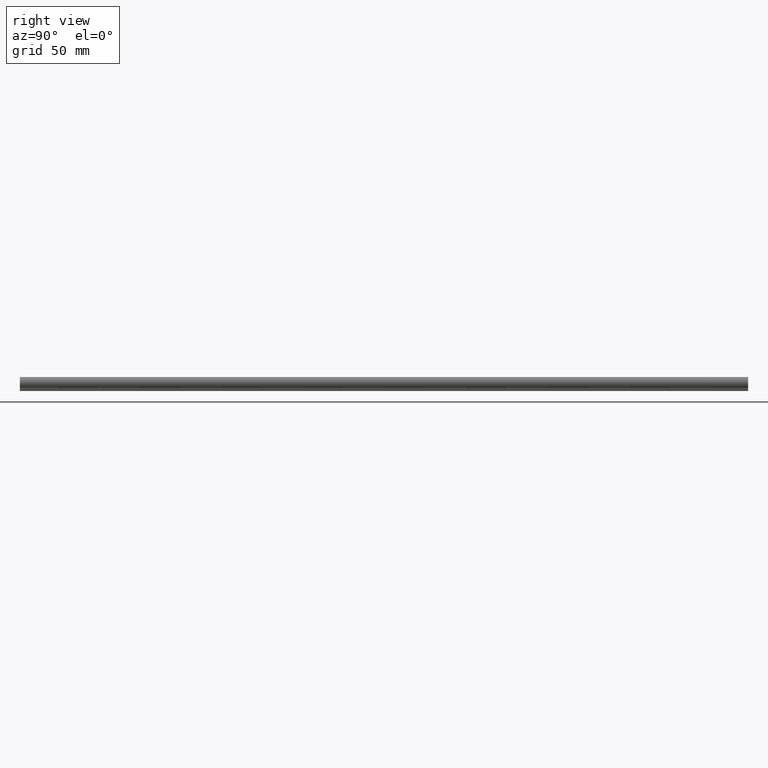
[diagram: clean part render]
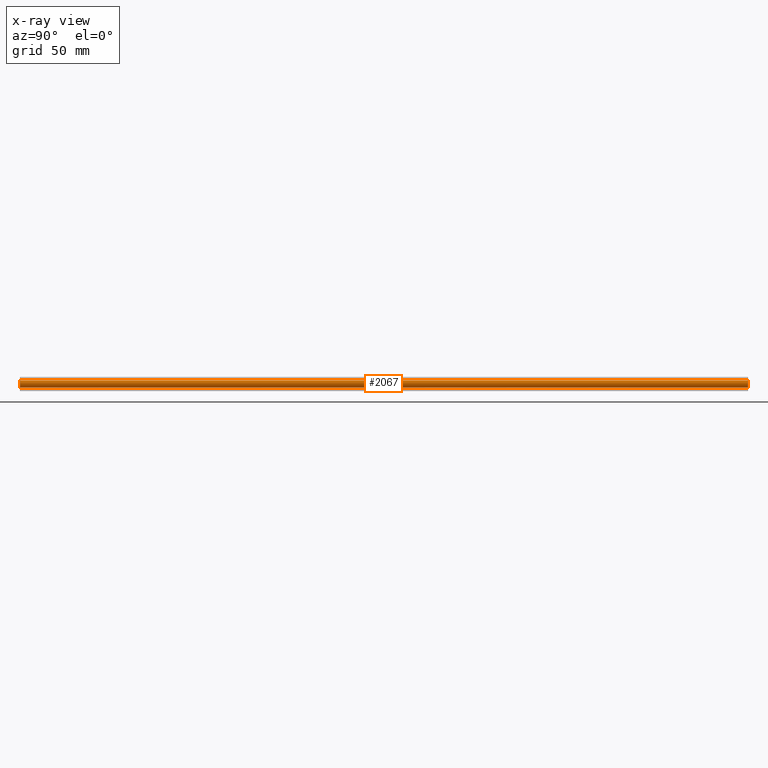
[diagram: x-ray — body ghosted, one internal face saturated and labeled with its STEP entity id]
A machine part, right view, then the same camera in x-ray: the body is ghosted and one INTERNAL B-rep face — a face not visible from any outside direction — is saturated and labeled: STEP entity #2067.
In plain terms, the highlighted cylindrical surface (edge-blend (fillet) strip) has radius 1.75 mm, axis along (0, 1, 0).
Its self-contained STEP definition (entity closure, byte-faithful):
#102 = DIRECTION ( 'NONE',  ( 0.0000000000000000000, 1.000000000000000000, 0.0000000000000000000 ) ) ;
#272 = CARTESIAN_POINT ( 'NONE',  ( 0.0000000000000000000, -18.19999999999999900, 1.749999999999999800 ) ) ;
#558 = CARTESIAN_POINT ( 'NONE',  ( 0.0000000000000000000, -18.19999999999999900, 0.0000000000000000000 ) ) ;
#651 = VECTOR ( 'NONE', #3838, 1000.000000000000000 ) ;
#885 = DIRECTION ( 'NONE',  ( 0.0000000000000000000, 0.0000000000000000000, 1.000000000000000000 ) ) ;
#974 = AXIS2_PLACEMENT_3D ( 'NONE', #558, #1855, #885 ) ;
#1021 = CARTESIAN_POINT ( 'NONE',  ( 2.143131898507868100E-016, -18.19999999999999900, -1.749999999999999800 ) ) ;
#1115 = VECTOR ( 'NONE', #3583, 1000.000000000000000 ) ;
#1364 = EDGE_LOOP ( 'NONE', ( #2529, #2844, #1445, #3750 ) ) ;
#1391 = DIRECTION ( 'NONE',  ( 0.0000000000000000000, 1.000000000000000000, 0.0000000000000000000 ) ) ;
#1395 = VERTEX_POINT ( 'NONE', #272 ) ;
#1406 = CARTESIAN_POINT ( 'NONE',  ( 0.0000000000000000000, -18.19999999999999900, 1.749999999999999800 ) ) ;
#1445 = ORIENTED_EDGE ( 'NONE', *, *, #4064, .F. ) ;
#1855 = DIRECTION ( 'NONE',  ( 0.0000000000000000000, 1.000000000000000000, 0.0000000000000000000 ) ) ;
#1886 = VERTEX_POINT ( 'NONE', #2389 ) ;
#1977 = VERTEX_POINT ( 'NONE', #2443 ) ;
#1982 = CIRCLE ( 'NONE', #2161, 1.749999999999999800 ) ;
#2055 = CARTESIAN_POINT ( 'NONE',  ( 0.0000000000000000000, 331.8000000000000100, 0.0000000000000000000 ) ) ;
#2067 = ADVANCED_FACE ( 'NONE', ( #2685 ), #2393, .T. ) ;
#2070 = AXIS2_PLACEMENT_3D ( 'NONE', #3259, #1391, #3566 ) ;
#2161 = AXIS2_PLACEMENT_3D ( 'NONE', #2055, #102, #2362 ) ;
#2239 = EDGE_CURVE ( 'NONE', #1395, #4014, #2826, .T. ) ;
#2362 = DIRECTION ( 'NONE',  ( 0.0000000000000000000, 0.0000000000000000000, 1.000000000000000000 ) ) ;
#2389 = CARTESIAN_POINT ( 'NONE',  ( 2.143131898507868100E-016, 331.8000000000000100, -1.749999999999999800 ) ) ;
#2393 = CYLINDRICAL_SURFACE ( 'NONE', #974, 1.749999999999999800 ) ;
#2443 = CARTESIAN_POINT ( 'NONE',  ( 0.0000000000000000000, 331.8000000000000100, 1.749999999999999800 ) ) ;
#2484 = LINE ( 'NONE', #3533, #651 ) ;
#2529 = ORIENTED_EDGE ( 'NONE', *, *, #2239, .T. ) ;
#2685 = FACE_OUTER_BOUND ( 'NONE', #1364, .T. ) ;
#2826 = CIRCLE ( 'NONE', #2070, 1.749999999999999800 ) ;
#2844 = ORIENTED_EDGE ( 'NONE', *, *, #2938, .T. ) ;
#2938 = EDGE_CURVE ( 'NONE', #4014, #1886, #2484, .T. ) ;
#3259 = CARTESIAN_POINT ( 'NONE',  ( 0.0000000000000000000, -18.19999999999999900, 0.0000000000000000000 ) ) ;
#3512 = LINE ( 'NONE', #1406, #1115 ) ;
#3533 = CARTESIAN_POINT ( 'NONE',  ( 2.143131898507868100E-016, -18.19999999999999900, -1.749999999999999800 ) ) ;
#3566 = DIRECTION ( 'NONE',  ( 0.0000000000000000000, 0.0000000000000000000, 1.000000000000000000 ) ) ;
#3583 = DIRECTION ( 'NONE',  ( 0.0000000000000000000, 1.000000000000000000, 0.0000000000000000000 ) ) ;
#3750 = ORIENTED_EDGE ( 'NONE', *, *, #4079, .F. ) ;
#3838 = DIRECTION ( 'NONE',  ( 0.0000000000000000000, 1.000000000000000000, 0.0000000000000000000 ) ) ;
#4014 = VERTEX_POINT ( 'NONE', #1021 ) ;
#4064 = EDGE_CURVE ( 'NONE', #1977, #1886, #1982, .T. ) ;
#4079 = EDGE_CURVE ( 'NONE', #1395, #1977, #3512, .T. ) ;